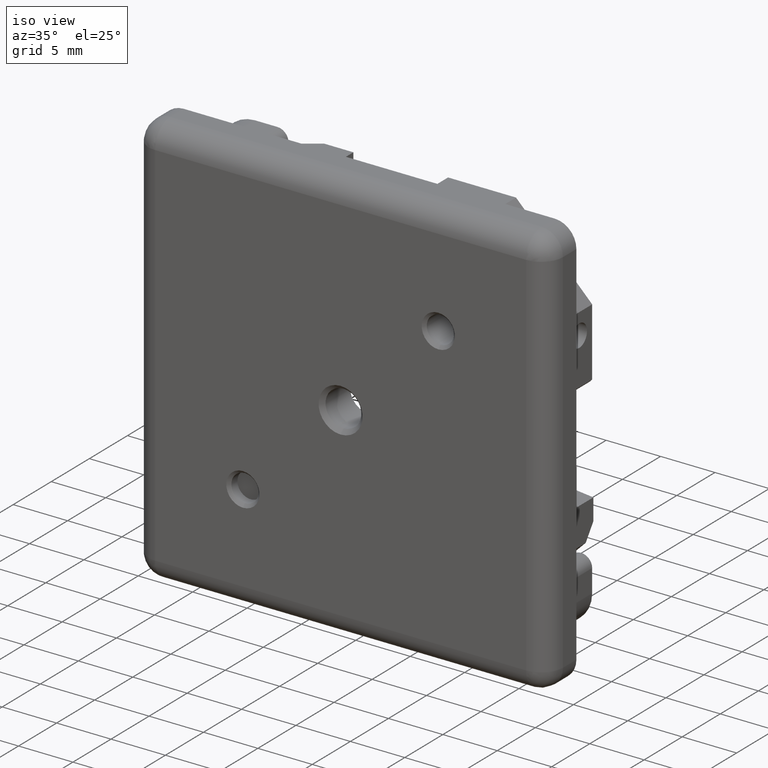
[diagram: clean part render]
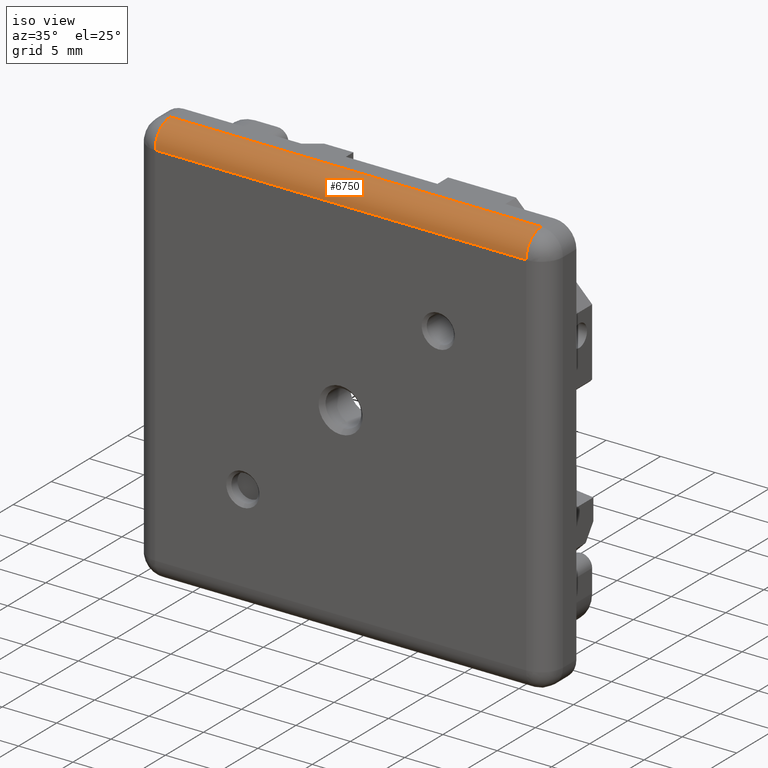
[diagram: same view with one face highlighted and labeled with its STEP entity id]
A machine part, iso view. The second image highlights one B-rep face of the part: STEP entity #6750.
In plain terms, the highlighted cylindrical surface (edge-blend (fillet) strip) has radius 2 mm, axis along (1, -0, 0).
Its self-contained STEP definition (entity closure, byte-faithful):
#109 = EDGE_CURVE ( 'NONE', #4043, #3342, #9205, .T. ) ;
#180 = VERTEX_POINT ( 'NONE', #11288 ) ;
#253 = CARTESIAN_POINT ( 'NONE',  ( -17.05000000000000071, 0.000000000000000000, 19.04999999999999716 ) ) ;
#581 = DIRECTION ( 'NONE',  ( -1.000000000000000000, 0.000000000000000000, 0.000000000000000000 ) ) ;
#608 = EDGE_CURVE ( 'NONE', #3342, #180, #9169, .T. ) ;
#727 = ORIENTED_EDGE ( 'NONE', *, *, #868, .F. ) ;
#801 = DIRECTION ( 'NONE',  ( -1.000000000000000000, 0.000000000000000000, -0.000000000000000000 ) ) ;
#868 = EDGE_CURVE ( 'NONE', #7422, #4043, #5842, .T. ) ;
#1444 = DIRECTION ( 'NONE',  ( 0.000000000000000000, 0.000000000000000000, 1.000000000000000000 ) ) ;
#1680 = LINE ( 'NONE', #3635, #11242 ) ;
#2254 = DIRECTION ( 'NONE',  ( 0.000000000000000000, 0.000000000000000000, -1.000000000000000000 ) ) ;
#3342 = VERTEX_POINT ( 'NONE', #11791 ) ;
#3635 = CARTESIAN_POINT ( 'NONE',  ( 0.000000000000000000, -2.000000000000000000, 17.04999999999999716 ) ) ;
#3955 = ORIENTED_EDGE ( 'NONE', *, *, #109, .F. ) ;
#4043 = VERTEX_POINT ( 'NONE', #253 ) ;
#4789 = AXIS2_PLACEMENT_3D ( 'NONE', #5092, #7728, #5166 ) ;
#5048 = AXIS2_PLACEMENT_3D ( 'NONE', #7930, #581, #1444 ) ;
#5092 = CARTESIAN_POINT ( 'NONE',  ( -19.05000000000000071, 0.000000000000000000, 17.04999999999999716 ) ) ;
#5166 = DIRECTION ( 'NONE',  ( 0.000000000000000000, 0.000000000000000000, -1.000000000000000000 ) ) ;
#5842 = CIRCLE ( 'NONE', #5048, 2.000000000000001776 ) ;
#6011 = EDGE_LOOP ( 'NONE', ( #11097, #3955, #727, #10375 ) ) ;
#6750 = ADVANCED_FACE ( 'NONE', ( #7271 ), #10001, .T. ) ;
#6871 = CARTESIAN_POINT ( 'NONE',  ( 17.05000000000000071, 0.000000000000000000, 17.04999999999999716 ) ) ;
#7271 = FACE_OUTER_BOUND ( 'NONE', #6011, .T. ) ;
#7422 = VERTEX_POINT ( 'NONE', #7519 ) ;
#7519 = CARTESIAN_POINT ( 'NONE',  ( -17.05000000000000071, -2.000000000000000000, 17.04999999999999716 ) ) ;
#7728 = DIRECTION ( 'NONE',  ( 1.000000000000000000, -0.000000000000000000, 0.000000000000000000 ) ) ;
#7803 = EDGE_CURVE ( 'NONE', #180, #7422, #1680, .T. ) ;
#7930 = CARTESIAN_POINT ( 'NONE',  ( -17.05000000000000071, 0.000000000000000000, 17.04999999999999716 ) ) ;
#8706 = DIRECTION ( 'NONE',  ( 1.000000000000000000, 0.000000000000000000, -0.000000000000000000 ) ) ;
#8843 = AXIS2_PLACEMENT_3D ( 'NONE', #6871, #8706, #2254 ) ;
#8933 = VECTOR ( 'NONE', #11332, 1000.000000000000000 ) ;
#9169 = CIRCLE ( 'NONE', #8843, 2.000000000000000000 ) ;
#9205 = LINE ( 'NONE', #11367, #8933 ) ;
#10001 = CYLINDRICAL_SURFACE ( 'NONE', #4789, 2.000000000000000000 ) ;
#10375 = ORIENTED_EDGE ( 'NONE', *, *, #7803, .F. ) ;
#11097 = ORIENTED_EDGE ( 'NONE', *, *, #608, .F. ) ;
#11242 = VECTOR ( 'NONE', #801, 1000.000000000000000 ) ;
#11288 = CARTESIAN_POINT ( 'NONE',  ( 17.05000000000000071, -2.000000000000000000, 17.04999999999999716 ) ) ;
#11332 = DIRECTION ( 'NONE',  ( 1.000000000000000000, -0.000000000000000000, 0.000000000000000000 ) ) ;
#11367 = CARTESIAN_POINT ( 'NONE',  ( -19.05000000000000071, 0.000000000000000000, 19.04999999999999716 ) ) ;
#11791 = CARTESIAN_POINT ( 'NONE',  ( 17.05000000000000071, 0.000000000000000000, 19.04999999999999716 ) ) ;